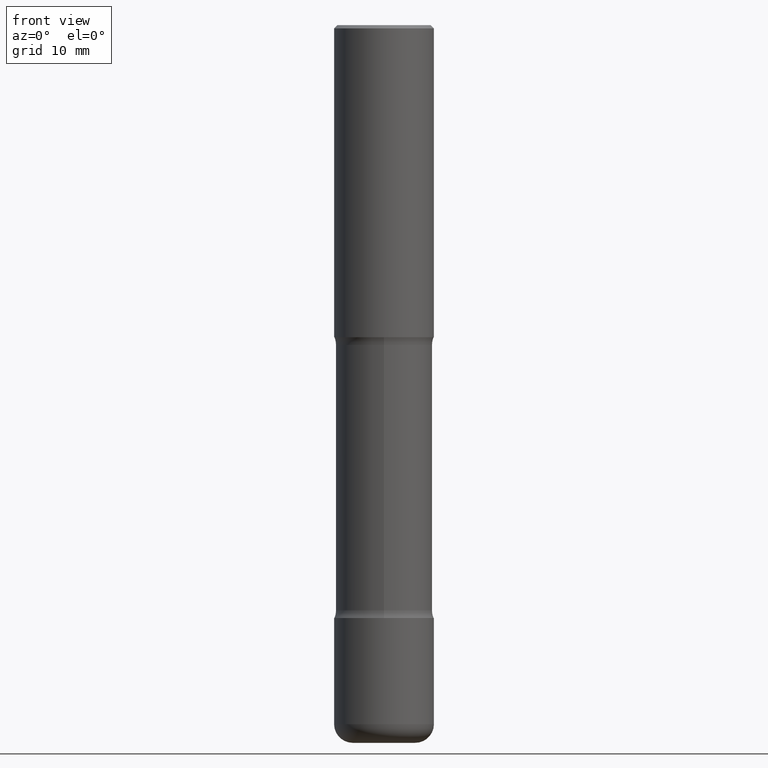
[diagram: clean part render]
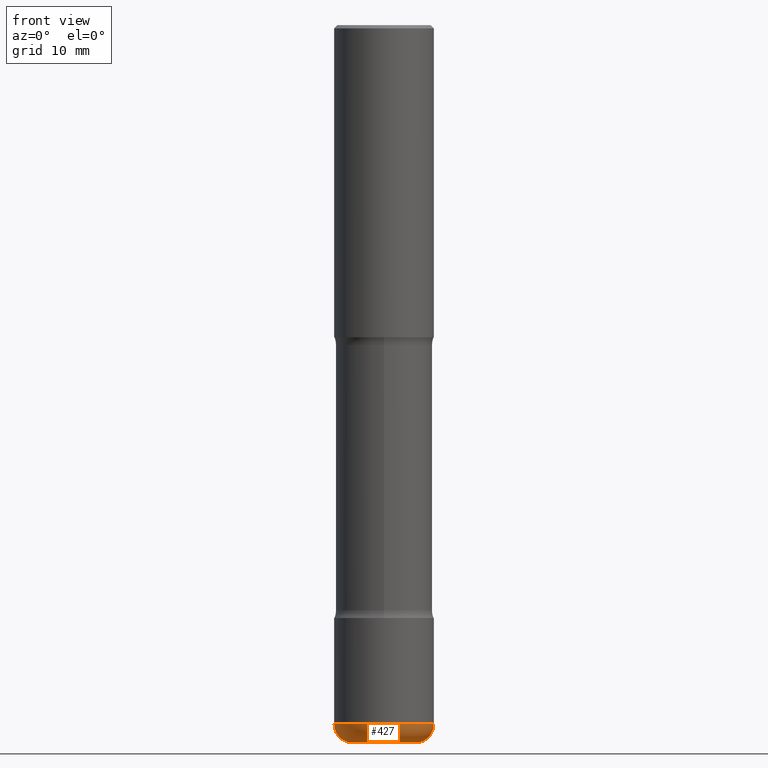
[diagram: same view with one face highlighted and labeled with its STEP entity id]
A machine part, front view. The second image highlights one B-rep face of the part: STEP entity #427.
In plain terms, the highlighted toroidal blend (fillet) surface has major radius 5 mm and minor (blend) radius 2.9997 mm.
Its self-contained STEP definition (entity closure, byte-faithful):
#13 = CARTESIAN_POINT ( 'NONE',  ( -0.3149500000000002853, -1.315783261735241693E-14, -4.409500000000000419 ) ) ;
#24 = AXIS2_PLACEMENT_3D ( 'NONE', #71, #161, #383 ) ;
#28 = ORIENTED_EDGE ( 'NONE', *, *, #409, .T. ) ;
#31 = CARTESIAN_POINT ( 'NONE',  ( -0.1968500000000003303, -1.399698358828509276E-14, -4.409500000000000419 ) ) ;
#39 = FACE_OUTER_BOUND ( 'NONE', #243, .T. ) ;
#51 = CARTESIAN_POINT ( 'NONE',  ( 1.107210456688382522E-28, -1.580803090974622705E-14, -4.527600000000000513 ) ) ;
#71 = CARTESIAN_POINT ( 'NONE',  ( 0.1968500000000003303, -1.677028316673139768E-14, -4.409500000000000419 ) ) ;
#124 = EDGE_CURVE ( 'NONE', #518, #351, #325, .T. ) ;
#141 = AXIS2_PLACEMENT_3D ( 'NONE', #171, #503, #418 ) ;
#160 = ORIENTED_EDGE ( 'NONE', *, *, #416, .F. ) ;
#161 = DIRECTION ( 'NONE',  ( -6.982962677686266711E-15, -1.000000000000000000, 3.491481338843145583E-15 ) ) ;
#171 = CARTESIAN_POINT ( 'NONE',  ( 1.078329470087336022E-28, -1.539568696362885450E-14, -4.409500000000000419 ) ) ;
#196 = CARTESIAN_POINT ( 'NONE',  ( 0.3149500000000002853, -1.759497105896614279E-14, -4.409500000000000419 ) ) ;
#210 = CARTESIAN_POINT ( 'NONE',  ( -0.1968500000000003303, -1.378358007587744270E-14, -4.527600000000000513 ) ) ;
#241 = DIRECTION ( 'NONE',  ( -2.445468806185136597E-29, 3.491481338843145583E-15, 1.000000000000000000 ) ) ;
#243 = EDGE_LOOP ( 'NONE', ( #333, #258, #28, #160 ) ) ;
#258 = ORIENTED_EDGE ( 'NONE', *, *, #124, .T. ) ;
#269 = AXIS2_PLACEMENT_3D ( 'NONE', #31, #553, #342 ) ;
#275 = CARTESIAN_POINT ( 'NONE',  ( 1.078329470087336022E-28, -1.539568696362885450E-14, -4.409500000000000419 ) ) ;
#310 = DIRECTION ( 'NONE',  ( 1.000000000000000000, -6.982962677686266711E-15, 0.000000000000000000 ) ) ;
#325 = CIRCLE ( 'NONE', #555, 0.1968500000000003303 ) ;
#333 = ORIENTED_EDGE ( 'NONE', *, *, #463, .F. ) ;
#337 = VERTEX_POINT ( 'NONE', #196 ) ;
#340 = VERTEX_POINT ( 'NONE', #13 ) ;
#342 = DIRECTION ( 'NONE',  ( -1.000000000000000000, 7.105427357601006592E-15, 0.000000000000000000 ) ) ;
#347 = CIRCLE ( 'NONE', #269, 0.1180999999999999689 ) ;
#351 = VERTEX_POINT ( 'NONE', #454 ) ;
#355 = DIRECTION ( 'NONE',  ( -2.445468806185136597E-29, 3.491481338843145583E-15, 1.000000000000000000 ) ) ;
#383 = DIRECTION ( 'NONE',  ( 1.000000000000000000, -6.982962677686258033E-15, 0.000000000000000000 ) ) ;
#393 = AXIS2_PLACEMENT_3D ( 'NONE', #275, #241, #468 ) ;
#409 = EDGE_CURVE ( 'NONE', #351, #337, #511, .T. ) ;
#416 = EDGE_CURVE ( 'NONE', #340, #337, #475, .T. ) ;
#418 = DIRECTION ( 'NONE',  ( 1.000000000000000000, -6.982962677686263555E-15, 0.000000000000000000 ) ) ;
#427 = ADVANCED_FACE ( 'NONE', ( #39 ), #533, .T. ) ;
#454 = CARTESIAN_POINT ( 'NONE',  ( 0.1968500000000003303, -1.718262711284877024E-14, -4.527600000000000513 ) ) ;
#463 = EDGE_CURVE ( 'NONE', #518, #340, #347, .T. ) ;
#468 = DIRECTION ( 'NONE',  ( 1.000000000000000000, -6.982962677686263555E-15, 4.883557194083111780E-29 ) ) ;
#475 = CIRCLE ( 'NONE', #141, 0.3149500000000002853 ) ;
#503 = DIRECTION ( 'NONE',  ( -2.445468806185136597E-29, 3.491481338843145583E-15, 1.000000000000000000 ) ) ;
#511 = CIRCLE ( 'NONE', #24, 0.1180999999999999689 ) ;
#518 = VERTEX_POINT ( 'NONE', #210 ) ;
#533 = TOROIDAL_SURFACE ( 'NONE', #393, 0.1968500000000003303, 0.1180999999999999966 ) ;
#553 = DIRECTION ( 'NONE',  ( 7.105427357601001859E-15, 1.000000000000000000, -3.491481338843145583E-15 ) ) ;
#555 = AXIS2_PLACEMENT_3D ( 'NONE', #51, #355, #310 ) ;